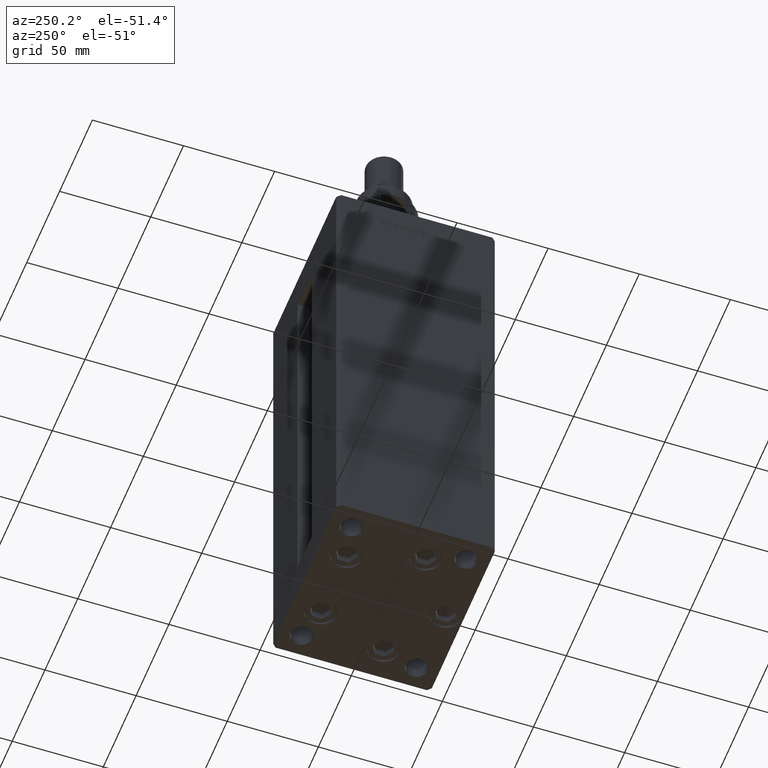
[diagram: clean part render]
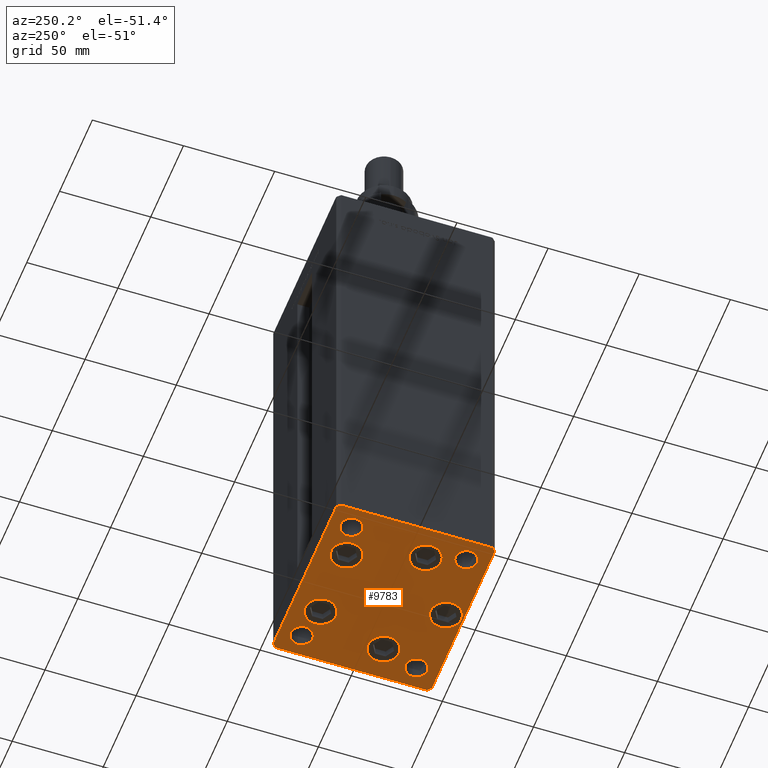
[diagram: same view with one face highlighted and labeled with its STEP entity id]
A machine part, auxiliary view. The second image highlights one B-rep face of the part: STEP entity #9783.
In plain terms, the highlighted planar face has unit normal (0, 0, -1).
Its self-contained STEP definition (entity closure, byte-faithful):
#194 = CARTESIAN_POINT ( 'NONE',  ( -19.82068048781373903, 27.62499999999999645, 0.000000000000000000 ) ) ;
#256 = CARTESIAN_POINT ( 'NONE',  ( -23.55550741379015278, -11.33333333333333748, 0.000000000000000000 ) ) ;
#321 = CARTESIAN_POINT ( 'NONE',  ( 19.82068048781373193, 27.62500000000000000, 0.000000000000000000 ) ) ;
#522 = VERTEX_POINT ( 'NONE', #7308 ) ;
#1009 = EDGE_CURVE ( 'NONE', #23720, #27151, #53366, .T. ) ;
#1037 = VERTEX_POINT ( 'NONE', #40850 ) ;
#1081 = DIRECTION ( 'NONE',  ( 0.000000000000000000, -0.000000000000000000, -1.000000000000000000 ) ) ;
#1219 = CARTESIAN_POINT ( 'NONE',  ( -37.99999999999999289, -31.50000000000000000, 0.000000000000000000 ) ) ;
#1987 = EDGE_LOOP ( 'NONE', ( #20360, #40524 ) ) ;
#2703 = ORIENTED_EDGE ( 'NONE', *, *, #22030, .T. ) ;
#2857 = ORIENTED_EDGE ( 'NONE', *, *, #48674, .T. ) ;
#2881 = DIRECTION ( 'NONE',  ( 1.000000000000000000, 0.000000000000000000, 0.000000000000000000 ) ) ;
#2946 = FACE_BOUND ( 'NONE', #9677, .T. ) ;
#3105 = CIRCLE ( 'NONE', #51936, 5.999999999999998224 ) ;
#3656 = EDGE_LOOP ( 'NONE', ( #45245, #26637 ) ) ;
#3669 = VERTEX_POINT ( 'NONE', #30234 ) ;
#3771 = FACE_OUTER_BOUND ( 'NONE', #38144, .T. ) ;
#3822 = AXIS2_PLACEMENT_3D ( 'NONE', #45229, #27725, #27453 ) ;
#4485 = DIRECTION ( 'NONE',  ( 1.000000000000000000, 0.000000000000000000, 0.000000000000000000 ) ) ;
#4916 = DIRECTION ( 'NONE',  ( 1.000000000000000000, 0.000000000000000000, 0.000000000000000000 ) ) ;
#4967 = VERTEX_POINT ( 'NONE', #46694 ) ;
#5092 = EDGE_LOOP ( 'NONE', ( #36490, #25451 ) ) ;
#6207 = CIRCLE ( 'NONE', #44413, 8.499999999999992895 ) ;
#6321 = DIRECTION ( 'NONE',  ( 1.000000000000000000, 0.000000000000000000, 0.000000000000000000 ) ) ;
#6352 = CARTESIAN_POINT ( 'NONE',  ( 50.00000000000000000, -41.49999999999999289, 0.000000000000000000 ) ) ;
#6400 = EDGE_CURVE ( 'NONE', #27151, #522, #6742, .T. ) ;
#6425 = CIRCLE ( 'NONE', #15334, 8.500000000000000000 ) ;
#6497 = DIRECTION ( 'NONE',  ( -0.000000000000000000, 0.000000000000000000, 1.000000000000000000 ) ) ;
#6669 = AXIS2_PLACEMENT_3D ( 'NONE', #43364, #1081, #6321 ) ;
#6675 = EDGE_LOOP ( 'NONE', ( #50921, #50005 ) ) ;
#6742 = LINE ( 'NONE', #23995, #34057 ) ;
#6766 = AXIS2_PLACEMENT_3D ( 'NONE', #52230, #35276, #14131 ) ;
#7255 = ORIENTED_EDGE ( 'NONE', *, *, #13398, .T. ) ;
#7308 = CARTESIAN_POINT ( 'NONE',  ( 47.99999999999990763, 43.50000000000000000, 0.000000000000000000 ) ) ;
#7429 = CIRCLE ( 'NONE', #9240, 5.999999999999998224 ) ;
#7623 = CIRCLE ( 'NONE', #37864, 8.500000000000000000 ) ;
#8132 = EDGE_LOOP ( 'NONE', ( #8983, #21946 ) ) ;
#8161 = EDGE_CURVE ( 'NONE', #36010, #22355, #6425, .T. ) ;
#8210 = DIRECTION ( 'NONE',  ( -0.000000000000000000, 0.000000000000000000, 1.000000000000000000 ) ) ;
#8274 = VECTOR ( 'NONE', #21808, 1000.000000000000000 ) ;
#8536 = DIRECTION ( 'NONE',  ( 0.000000000000000000, -0.000000000000000000, -1.000000000000000000 ) ) ;
#8566 = DIRECTION ( 'NONE',  ( 0.000000000000000000, -0.000000000000000000, -1.000000000000000000 ) ) ;
#8868 = EDGE_CURVE ( 'NONE', #14801, #29493, #49095, .T. ) ;
#8983 = ORIENTED_EDGE ( 'NONE', *, *, #12620, .F. ) ;
#8998 = CIRCLE ( 'NONE', #40083, 8.500000000000000000 ) ;
#9063 = DIRECTION ( 'NONE',  ( 0.000000000000000000, -0.000000000000000000, -1.000000000000000000 ) ) ;
#9073 = DIRECTION ( 'NONE',  ( -0.000000000000000000, 0.000000000000000000, 1.000000000000000000 ) ) ;
#9093 = DIRECTION ( 'NONE',  ( -0.000000000000000000, 0.000000000000000000, 1.000000000000000000 ) ) ;
#9240 = AXIS2_PLACEMENT_3D ( 'NONE', #48784, #6497, #2881 ) ;
#9677 = EDGE_LOOP ( 'NONE', ( #42320, #2703 ) ) ;
#9774 = EDGE_CURVE ( 'NONE', #17469, #14444, #49984, .T. ) ;
#9783 = ADVANCED_FACE ( 'NONE', ( #44961, #18825, #2946, #42150, #21031, #54403, #33260, #38002, #3771, #16847 ), #32979, .T. ) ;
#10185 = LINE ( 'NONE', #19378, #21842 ) ;
#10881 = AXIS2_PLACEMENT_3D ( 'NONE', #12411, #21058, #15773 ) ;
#11145 = CARTESIAN_POINT ( 'NONE',  ( 44.00000000000000000, 31.49999999999999289, 0.000000000000000000 ) ) ;
#11416 = CIRCLE ( 'NONE', #52390, 8.500000000000000000 ) ;
#11730 = CARTESIAN_POINT ( 'NONE',  ( 11.32068048781373015, 27.62500000000000000, 0.000000000000000000 ) ) ;
#11898 = DIRECTION ( 'NONE',  ( 0.7071067811865474617, -0.7071067811865474617, 0.000000000000000000 ) ) ;
#12399 = CARTESIAN_POINT ( 'NONE',  ( -47.99999999999999289, -43.50000000000001421, 0.000000000000000000 ) ) ;
#12411 = CARTESIAN_POINT ( 'NONE',  ( -19.82068048781373903, 27.62499999999999645, 0.000000000000000000 ) ) ;
#12548 = EDGE_LOOP ( 'NONE', ( #29884, #45177 ) ) ;
#12620 = EDGE_CURVE ( 'NONE', #4967, #36308, #39457, .T. ) ;
#13009 = ORIENTED_EDGE ( 'NONE', *, *, #1009, .T. ) ;
#13398 = EDGE_CURVE ( 'NONE', #29493, #14801, #34172, .T. ) ;
#13475 = CARTESIAN_POINT ( 'NONE',  ( -50.00000000000000711, 41.49999999999995026, 0.000000000000000000 ) ) ;
#14033 = VERTEX_POINT ( 'NONE', #41242 ) ;
#14131 = DIRECTION ( 'NONE',  ( 1.000000000000000000, 0.000000000000000000, 0.000000000000000000 ) ) ;
#14444 = VERTEX_POINT ( 'NONE', #11145 ) ;
#14491 = AXIS2_PLACEMENT_3D ( 'NONE', #37719, #8210, #50212 ) ;
#14514 = DIRECTION ( 'NONE',  ( 1.000000000000000000, 0.000000000000000000, 0.000000000000000000 ) ) ;
#14532 = VERTEX_POINT ( 'NONE', #15452 ) ;
#14716 = DIRECTION ( 'NONE',  ( -1.003213576468515193E-15, 1.000000000000000000, 0.000000000000000000 ) ) ;
#14801 = VERTEX_POINT ( 'NONE', #54223 ) ;
#15019 = VERTEX_POINT ( 'NONE', #24409 ) ;
#15334 = AXIS2_PLACEMENT_3D ( 'NONE', #34857, #31215, #14514 ) ;
#15452 = CARTESIAN_POINT ( 'NONE',  ( -48.00000000000000711, 43.49999999999996447, 0.000000000000000000 ) ) ;
#15454 = AXIS2_PLACEMENT_3D ( 'NONE', #46917, #9073, #4916 ) ;
#15469 = EDGE_CURVE ( 'NONE', #15019, #41388, #15953, .T. ) ;
#15521 = CARTESIAN_POINT ( 'NONE',  ( 4.163799117101000559E-15, -34.00000000000000000, 0.000000000000000000 ) ) ;
#15611 = VERTEX_POINT ( 'NONE', #41227 ) ;
#15691 = CARTESIAN_POINT ( 'NONE',  ( 50.00000000000000000, -41.49999999999999289, 0.000000000000000000 ) ) ;
#15773 = DIRECTION ( 'NONE',  ( 1.000000000000000000, 0.000000000000000000, 0.000000000000000000 ) ) ;
#15953 = CIRCLE ( 'NONE', #44381, 6.000000000000005329 ) ;
#16023 = ORIENTED_EDGE ( 'NONE', *, *, #29608, .T. ) ;
#16307 = LINE ( 'NONE', #12399, #8274 ) ;
#16847 = FACE_BOUND ( 'NONE', #1987, .T. ) ;
#16904 = EDGE_CURVE ( 'NONE', #35525, #39259, #11416, .T. ) ;
#17207 = VERTEX_POINT ( 'NONE', #48773 ) ;
#17235 = CARTESIAN_POINT ( 'NONE',  ( 47.99999999999999289, -43.50000000000001421, 0.000000000000000000 ) ) ;
#17469 = VERTEX_POINT ( 'NONE', #52379 ) ;
#18825 = FACE_BOUND ( 'NONE', #39722, .T. ) ;
#19378 = CARTESIAN_POINT ( 'NONE',  ( 47.99999999999990763, 43.50000000000000000, 0.000000000000000000 ) ) ;
#19547 = CARTESIAN_POINT ( 'NONE',  ( 32.05550741379015278, -11.33333333333333037, 0.000000000000000000 ) ) ;
#20190 = EDGE_CURVE ( 'NONE', #39259, #35525, #20368, .T. ) ;
#20360 = ORIENTED_EDGE ( 'NONE', *, *, #42068, .T. ) ;
#20368 = CIRCLE ( 'NONE', #27478, 8.500000000000000000 ) ;
#21031 = FACE_BOUND ( 'NONE', #3656, .T. ) ;
#21058 = DIRECTION ( 'NONE',  ( 0.000000000000000000, -0.000000000000000000, -1.000000000000000000 ) ) ;
#21480 = EDGE_CURVE ( 'NONE', #14033, #31222, #39084, .T. ) ;
#21681 = EDGE_CURVE ( 'NONE', #17207, #38841, #33781, .T. ) ;
#21745 = VECTOR ( 'NONE', #45208, 1000.000000000000000 ) ;
#21808 = DIRECTION ( 'NONE',  ( 1.000000000000000000, 0.000000000000000000, 0.000000000000000000 ) ) ;
#21842 = VECTOR ( 'NONE', #45225, 1000.000000000000000 ) ;
#21946 = ORIENTED_EDGE ( 'NONE', *, *, #49439, .F. ) ;
#22030 = EDGE_CURVE ( 'NONE', #31222, #14033, #6207, .T. ) ;
#22347 = VECTOR ( 'NONE', #14716, 1000.000000000000000 ) ;
#22355 = VERTEX_POINT ( 'NONE', #256 ) ;
#23222 = ORIENTED_EDGE ( 'NONE', *, *, #28212, .T. ) ;
#23720 = VERTEX_POINT ( 'NONE', #15691 ) ;
#23995 = CARTESIAN_POINT ( 'NONE',  ( 49.99999999999992184, 41.49999999999998579, 0.000000000000000000 ) ) ;
#24284 = EDGE_LOOP ( 'NONE', ( #7255, #41776 ) ) ;
#24409 = CARTESIAN_POINT ( 'NONE',  ( -44.00000000000000000, -31.50000000000000000, 0.000000000000000000 ) ) ;
#24985 = CARTESIAN_POINT ( 'NONE',  ( -31.99999999999998579, -31.50000000000000000, 0.000000000000000000 ) ) ;
#25061 = EDGE_CURVE ( 'NONE', #38841, #17207, #8998, .T. ) ;
#25451 = ORIENTED_EDGE ( 'NONE', *, *, #9774, .F. ) ;
#25552 = LINE ( 'NONE', #29161, #54469 ) ;
#26067 = DIRECTION ( 'NONE',  ( 1.000000000000000000, 0.000000000000000000, 0.000000000000000000 ) ) ;
#26637 = ORIENTED_EDGE ( 'NONE', *, *, #51660, .T. ) ;
#27151 = VERTEX_POINT ( 'NONE', #27430 ) ;
#27430 = CARTESIAN_POINT ( 'NONE',  ( 49.99999999999992184, 41.49999999999998579, 0.000000000000000000 ) ) ;
#27453 = DIRECTION ( 'NONE',  ( 1.000000000000000000, 0.000000000000000000, 0.000000000000000000 ) ) ;
#27478 = AXIS2_PLACEMENT_3D ( 'NONE', #30335, #47577, #48664 ) ;
#27725 = DIRECTION ( 'NONE',  ( -0.000000000000000000, 0.000000000000000000, 1.000000000000000000 ) ) ;
#27830 = AXIS2_PLACEMENT_3D ( 'NONE', #46397, #8566, #34161 ) ;
#27854 = CARTESIAN_POINT ( 'NONE',  ( -50.00000000000000000, -41.50000000000000000, 0.000000000000000000 ) ) ;
#28212 = EDGE_CURVE ( 'NONE', #38234, #52028, #51579, .T. ) ;
#28582 = DIRECTION ( 'NONE',  ( 1.000000000000000000, 0.000000000000000000, 0.000000000000000000 ) ) ;
#29091 = CARTESIAN_POINT ( 'NONE',  ( 40.55550741379014568, -11.33333333333332860, 0.000000000000000000 ) ) ;
#29161 = CARTESIAN_POINT ( 'NONE',  ( -50.00000000000000000, -41.50000000000000000, 0.000000000000000000 ) ) ;
#29493 = VERTEX_POINT ( 'NONE', #38480 ) ;
#29608 = EDGE_CURVE ( 'NONE', #52028, #3669, #25552, .T. ) ;
#29671 = EDGE_CURVE ( 'NONE', #15611, #1037, #39350, .T. ) ;
#29884 = ORIENTED_EDGE ( 'NONE', *, *, #50909, .T. ) ;
#30234 = CARTESIAN_POINT ( 'NONE',  ( -47.99999999999999289, -43.50000000000001421, 0.000000000000000000 ) ) ;
#30335 = CARTESIAN_POINT ( 'NONE',  ( 4.163799117101000559E-15, -34.00000000000000000, 0.000000000000000000 ) ) ;
#30711 = CIRCLE ( 'NONE', #6669, 5.999999999999998224 ) ;
#31215 = DIRECTION ( 'NONE',  ( 0.000000000000000000, -0.000000000000000000, -1.000000000000000000 ) ) ;
#31222 = VERTEX_POINT ( 'NONE', #29091 ) ;
#31746 = CARTESIAN_POINT ( 'NONE',  ( -44.00000000000000000, 31.50000000000000000, 0.000000000000000000 ) ) ;
#32322 = CARTESIAN_POINT ( 'NONE',  ( -48.00000000000000711, 43.49999999999996447, 0.000000000000000000 ) ) ;
#32760 = DIRECTION ( 'NONE',  ( 1.000000000000000000, 0.000000000000000000, 0.000000000000000000 ) ) ;
#32979 = PLANE ( 'NONE',  #14491 ) ;
#33260 = FACE_BOUND ( 'NONE', #12548, .T. ) ;
#33437 = DIRECTION ( 'NONE',  ( 1.000000000000000000, 0.000000000000000000, 0.000000000000000000 ) ) ;
#33781 = CIRCLE ( 'NONE', #40008, 8.500000000000000000 ) ;
#33815 = ORIENTED_EDGE ( 'NONE', *, *, #41644, .T. ) ;
#34057 = VECTOR ( 'NONE', #35404, 1000.000000000000114 ) ;
#34161 = DIRECTION ( 'NONE',  ( 1.000000000000000000, 0.000000000000000000, 0.000000000000000000 ) ) ;
#34172 = CIRCLE ( 'NONE', #47466, 8.500000000000000000 ) ;
#34857 = CARTESIAN_POINT ( 'NONE',  ( -32.05550741379015278, -11.33333333333333925, 0.000000000000000000 ) ) ;
#34935 = VECTOR ( 'NONE', #40666, 1000.000000000000000 ) ;
#34938 = CARTESIAN_POINT ( 'NONE',  ( 32.05550741379015278, -11.33333333333333037, 0.000000000000000000 ) ) ;
#35149 = DIRECTION ( 'NONE',  ( 0.000000000000000000, -0.000000000000000000, -1.000000000000000000 ) ) ;
#35178 = ORIENTED_EDGE ( 'NONE', *, *, #35402, .T. ) ;
#35276 = DIRECTION ( 'NONE',  ( 0.000000000000000000, -0.000000000000000000, -1.000000000000000000 ) ) ;
#35298 = EDGE_CURVE ( 'NONE', #3669, #50686, #16307, .T. ) ;
#35402 = EDGE_CURVE ( 'NONE', #14532, #38234, #50091, .T. ) ;
#35404 = DIRECTION ( 'NONE',  ( -0.7071067811865474617, 0.7071067811865474617, 0.000000000000000000 ) ) ;
#35516 = AXIS2_PLACEMENT_3D ( 'NONE', #34938, #9063, #46910 ) ;
#35525 = VERTEX_POINT ( 'NONE', #54006 ) ;
#35741 = ORIENTED_EDGE ( 'NONE', *, *, #21681, .T. ) ;
#36010 = VERTEX_POINT ( 'NONE', #36089 ) ;
#36026 = DIRECTION ( 'NONE',  ( 1.000000000000000000, 0.000000000000000000, 0.000000000000000000 ) ) ;
#36089 = CARTESIAN_POINT ( 'NONE',  ( -40.55550741379015278, -11.33333333333333925, 0.000000000000000000 ) ) ;
#36114 = EDGE_CURVE ( 'NONE', #14444, #17469, #7429, .T. ) ;
#36308 = VERTEX_POINT ( 'NONE', #31746 ) ;
#36490 = ORIENTED_EDGE ( 'NONE', *, *, #36114, .F. ) ;
#36939 = CARTESIAN_POINT ( 'NONE',  ( -32.05550741379015278, -11.33333333333333925, 0.000000000000000000 ) ) ;
#37413 = CARTESIAN_POINT ( 'NONE',  ( 47.99999999999999289, -43.50000000000001421, 0.000000000000000000 ) ) ;
#37719 = CARTESIAN_POINT ( 'NONE',  ( 0.000000000000000000, 0.000000000000000000, 0.000000000000000000 ) ) ;
#37864 = AXIS2_PLACEMENT_3D ( 'NONE', #36939, #53345, #28582 ) ;
#37886 = DIRECTION ( 'NONE',  ( 0.000000000000000000, -0.000000000000000000, -1.000000000000000000 ) ) ;
#38002 = FACE_BOUND ( 'NONE', #8132, .T. ) ;
#38144 = EDGE_LOOP ( 'NONE', ( #16023, #51056, #2857, #13009, #52695, #33815, #35178, #23222 ) ) ;
#38234 = VERTEX_POINT ( 'NONE', #54211 ) ;
#38480 = CARTESIAN_POINT ( 'NONE',  ( -28.32068048781373903, 27.62499999999999645, 0.000000000000000000 ) ) ;
#38841 = VERTEX_POINT ( 'NONE', #11730 ) ;
#39084 = CIRCLE ( 'NONE', #35516, 8.499999999999992895 ) ;
#39259 = VERTEX_POINT ( 'NONE', #52785 ) ;
#39350 = CIRCLE ( 'NONE', #27830, 5.999999999999998224 ) ;
#39355 = DIRECTION ( 'NONE',  ( 8.360113137237628665E-17, -1.000000000000000000, 0.000000000000000000 ) ) ;
#39457 = CIRCLE ( 'NONE', #15454, 5.999999999999998224 ) ;
#39615 = CIRCLE ( 'NONE', #6766, 6.000000000000005329 ) ;
#39722 = EDGE_LOOP ( 'NONE', ( #51349, #35741 ) ) ;
#40008 = AXIS2_PLACEMENT_3D ( 'NONE', #40746, #48255, #36026 ) ;
#40083 = AXIS2_PLACEMENT_3D ( 'NONE', #321, #37886, #4485 ) ;
#40524 = ORIENTED_EDGE ( 'NONE', *, *, #15469, .T. ) ;
#40666 = DIRECTION ( 'NONE',  ( -0.7071067811865463515, -0.7071067811865487940, 0.000000000000000000 ) ) ;
#40746 = CARTESIAN_POINT ( 'NONE',  ( 19.82068048781373193, 27.62500000000000000, 0.000000000000000000 ) ) ;
#40850 = CARTESIAN_POINT ( 'NONE',  ( 44.00000000000000000, -31.49999999999999289, 0.000000000000000000 ) ) ;
#41227 = CARTESIAN_POINT ( 'NONE',  ( 32.00000000000000000, -31.49999999999999289, 0.000000000000000000 ) ) ;
#41242 = CARTESIAN_POINT ( 'NONE',  ( 23.55550741379015633, -11.33333333333333037, 0.000000000000000000 ) ) ;
#41388 = VERTEX_POINT ( 'NONE', #24985 ) ;
#41644 = EDGE_CURVE ( 'NONE', #522, #14532, #10185, .T. ) ;
#41776 = ORIENTED_EDGE ( 'NONE', *, *, #8868, .T. ) ;
#42068 = EDGE_CURVE ( 'NONE', #41388, #15019, #39615, .T. ) ;
#42150 = FACE_BOUND ( 'NONE', #6675, .T. ) ;
#42320 = ORIENTED_EDGE ( 'NONE', *, *, #21480, .T. ) ;
#43364 = CARTESIAN_POINT ( 'NONE',  ( 38.00000000000000000, -31.49999999999999289, 0.000000000000000000 ) ) ;
#44381 = AXIS2_PLACEMENT_3D ( 'NONE', #1219, #35149, #51293 ) ;
#44413 = AXIS2_PLACEMENT_3D ( 'NONE', #19547, #54582, #33437 ) ;
#44659 = VECTOR ( 'NONE', #39355, 1000.000000000000000 ) ;
#44961 = FACE_BOUND ( 'NONE', #24284, .T. ) ;
#45177 = ORIENTED_EDGE ( 'NONE', *, *, #29671, .T. ) ;
#45208 = DIRECTION ( 'NONE',  ( 0.7071067811865463515, 0.7071067811865487940, 0.000000000000000000 ) ) ;
#45225 = DIRECTION ( 'NONE',  ( -1.000000000000000000, -3.614007241618350743E-16, 0.000000000000000000 ) ) ;
#45229 = CARTESIAN_POINT ( 'NONE',  ( 38.00000000000000000, 31.49999999999999289, 0.000000000000000000 ) ) ;
#45245 = ORIENTED_EDGE ( 'NONE', *, *, #8161, .T. ) ;
#46385 = DIRECTION ( 'NONE',  ( 1.000000000000000000, 0.000000000000000000, 0.000000000000000000 ) ) ;
#46397 = CARTESIAN_POINT ( 'NONE',  ( 38.00000000000000000, -31.49999999999999289, 0.000000000000000000 ) ) ;
#46694 = CARTESIAN_POINT ( 'NONE',  ( -32.00000000000000000, 31.50000000000000000, 0.000000000000000000 ) ) ;
#46910 = DIRECTION ( 'NONE',  ( 1.000000000000000000, 0.000000000000000000, 0.000000000000000000 ) ) ;
#46917 = CARTESIAN_POINT ( 'NONE',  ( -38.00000000000000000, 31.50000000000000000, 0.000000000000000000 ) ) ;
#47466 = AXIS2_PLACEMENT_3D ( 'NONE', #194, #8536, #26067 ) ;
#47577 = DIRECTION ( 'NONE',  ( 0.000000000000000000, -0.000000000000000000, -1.000000000000000000 ) ) ;
#48255 = DIRECTION ( 'NONE',  ( 0.000000000000000000, -0.000000000000000000, -1.000000000000000000 ) ) ;
#48664 = DIRECTION ( 'NONE',  ( 1.000000000000000000, 0.000000000000000000, 0.000000000000000000 ) ) ;
#48674 = EDGE_CURVE ( 'NONE', #50686, #23720, #49107, .T. ) ;
#48773 = CARTESIAN_POINT ( 'NONE',  ( 28.32068048781373193, 27.62500000000000000, 0.000000000000000000 ) ) ;
#48784 = CARTESIAN_POINT ( 'NONE',  ( 38.00000000000000000, 31.49999999999999289, 0.000000000000000000 ) ) ;
#49095 = CIRCLE ( 'NONE', #10881, 8.500000000000000000 ) ;
#49107 = LINE ( 'NONE', #37413, #21745 ) ;
#49439 = EDGE_CURVE ( 'NONE', #36308, #4967, #3105, .T. ) ;
#49984 = CIRCLE ( 'NONE', #3822, 5.999999999999998224 ) ;
#50005 = ORIENTED_EDGE ( 'NONE', *, *, #20190, .T. ) ;
#50091 = LINE ( 'NONE', #32322, #34935 ) ;
#50212 = DIRECTION ( 'NONE',  ( 1.000000000000000000, 0.000000000000000000, 0.000000000000000000 ) ) ;
#50549 = CARTESIAN_POINT ( 'NONE',  ( -38.00000000000000000, 31.50000000000000000, 0.000000000000000000 ) ) ;
#50686 = VERTEX_POINT ( 'NONE', #17235 ) ;
#50744 = DIRECTION ( 'NONE',  ( 0.000000000000000000, -0.000000000000000000, -1.000000000000000000 ) ) ;
#50909 = EDGE_CURVE ( 'NONE', #1037, #15611, #30711, .T. ) ;
#50921 = ORIENTED_EDGE ( 'NONE', *, *, #16904, .T. ) ;
#51056 = ORIENTED_EDGE ( 'NONE', *, *, #35298, .T. ) ;
#51293 = DIRECTION ( 'NONE',  ( 1.000000000000000000, 0.000000000000000000, 0.000000000000000000 ) ) ;
#51349 = ORIENTED_EDGE ( 'NONE', *, *, #25061, .T. ) ;
#51579 = LINE ( 'NONE', #13475, #44659 ) ;
#51660 = EDGE_CURVE ( 'NONE', #22355, #36010, #7623, .T. ) ;
#51936 = AXIS2_PLACEMENT_3D ( 'NONE', #50549, #9093, #46385 ) ;
#52028 = VERTEX_POINT ( 'NONE', #27854 ) ;
#52230 = CARTESIAN_POINT ( 'NONE',  ( -37.99999999999999289, -31.50000000000000000, 0.000000000000000000 ) ) ;
#52379 = CARTESIAN_POINT ( 'NONE',  ( 32.00000000000000000, 31.49999999999999289, 0.000000000000000000 ) ) ;
#52390 = AXIS2_PLACEMENT_3D ( 'NONE', #15521, #50744, #32760 ) ;
#52695 = ORIENTED_EDGE ( 'NONE', *, *, #6400, .T. ) ;
#52785 = CARTESIAN_POINT ( 'NONE',  ( 8.500000000000003553, -34.00000000000000000, 0.000000000000000000 ) ) ;
#53345 = DIRECTION ( 'NONE',  ( 0.000000000000000000, -0.000000000000000000, -1.000000000000000000 ) ) ;
#53366 = LINE ( 'NONE', #6352, #22347 ) ;
#54006 = CARTESIAN_POINT ( 'NONE',  ( -8.499999999999996447, -34.00000000000000000, 0.000000000000000000 ) ) ;
#54211 = CARTESIAN_POINT ( 'NONE',  ( -50.00000000000000711, 41.49999999999995026, 0.000000000000000000 ) ) ;
#54223 = CARTESIAN_POINT ( 'NONE',  ( -11.32068048781373726, 27.62499999999999645, 0.000000000000000000 ) ) ;
#54403 = FACE_BOUND ( 'NONE', #5092, .T. ) ;
#54469 = VECTOR ( 'NONE', #11898, 1000.000000000000114 ) ;
#54582 = DIRECTION ( 'NONE',  ( 0.000000000000000000, -0.000000000000000000, -1.000000000000000000 ) ) ;